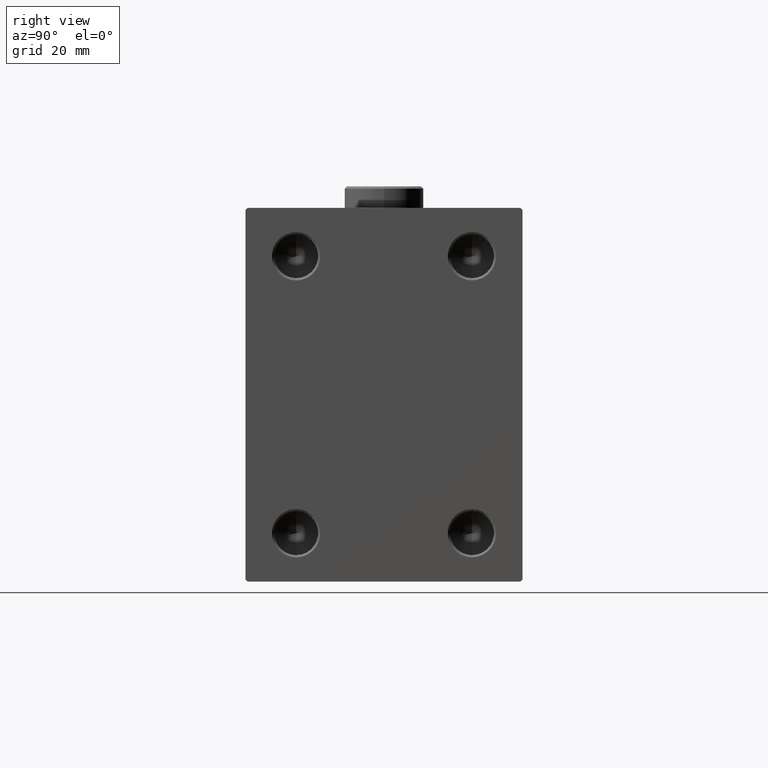
[diagram: clean part render]
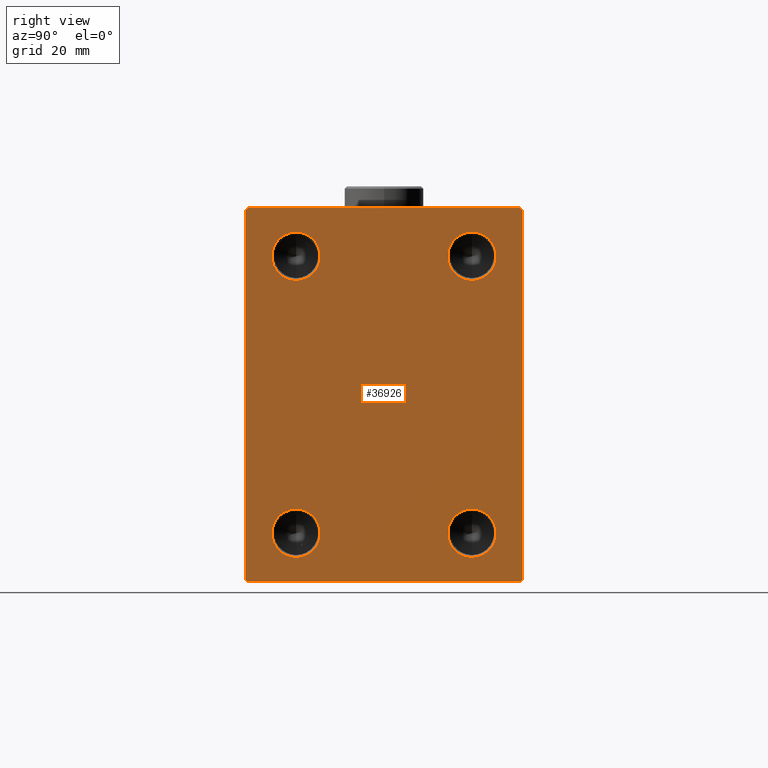
[diagram: same view with one face highlighted and labeled with its STEP entity id]
A machine part, right view. The second image highlights one B-rep face of the part: STEP entity #36926.
In plain terms, the highlighted planar face has unit normal (1, 0, 0).
Its self-contained STEP definition (entity closure, byte-faithful):
#78 = VERTEX_POINT ( 'NONE', #22331 ) ;
#230 = DIRECTION ( 'NONE',  ( 0.000000000000000000, -0.7071067811865474617, -0.7071067811865474617 ) ) ;
#1031 = VERTEX_POINT ( 'NONE', #31180 ) ;
#1392 = CARTESIAN_POINT ( 'NONE',  ( 113.0000000000000000, -31.50000000000000000, 42.00000000000001421 ) ) ;
#1752 = LINE ( 'NONE', #11216, #4966 ) ;
#1959 = AXIS2_PLACEMENT_3D ( 'NONE', #3819, #36097, #11414 ) ;
#2239 = EDGE_CURVE ( 'NONE', #16648, #42021, #31319, .T. ) ;
#2272 = EDGE_CURVE ( 'NONE', #38893, #29873, #42996, .T. ) ;
#2332 = CARTESIAN_POINT ( 'NONE',  ( 113.0000000000000000, 19.99999999999999645, -31.50000000000000000 ) ) ;
#2755 = EDGE_CURVE ( 'NONE', #42021, #16648, #37141, .T. ) ;
#2882 = DIRECTION ( 'NONE',  ( -0.000000000000000000, -0.7071067811865474617, 0.7071067811865474617 ) ) ;
#3180 = VERTEX_POINT ( 'NONE', #15703 ) ;
#3267 = VECTOR ( 'NONE', #38382, 1000.000000000000000 ) ;
#3485 = EDGE_CURVE ( 'NONE', #4454, #3760, #22516, .T. ) ;
#3490 = EDGE_CURVE ( 'NONE', #3760, #9118, #23429, .T. ) ;
#3702 = CARTESIAN_POINT ( 'NONE',  ( 113.0000000000000000, -31.00000000000002842, 42.49999999999998579 ) ) ;
#3747 = EDGE_CURVE ( 'NONE', #29873, #38893, #42265, .T. ) ;
#3760 = VERTEX_POINT ( 'NONE', #23141 ) ;
#3819 = CARTESIAN_POINT ( 'NONE',  ( 113.0000000000000000, -20.00000000000000355, -31.50000000000000000 ) ) ;
#3899 = FACE_OUTER_BOUND ( 'NONE', #28301, .T. ) ;
#4015 = CARTESIAN_POINT ( 'NONE',  ( 113.0000000000000000, 19.99999999999999645, 36.99999999999996447 ) ) ;
#4153 = CIRCLE ( 'NONE', #1959, 5.499999999999963585 ) ;
#4266 = EDGE_CURVE ( 'NONE', #78, #11572, #27611, .T. ) ;
#4454 = VERTEX_POINT ( 'NONE', #37540 ) ;
#4575 = DIRECTION ( 'NONE',  ( 0.000000000000000000, -1.632680918566406547E-16, 1.000000000000000000 ) ) ;
#4676 = CARTESIAN_POINT ( 'NONE',  ( 113.0000000000000000, -20.00000000000000355, 36.99999999999996447 ) ) ;
#4966 = VECTOR ( 'NONE', #18816, 1000.000000000000000 ) ;
#6533 = AXIS2_PLACEMENT_3D ( 'NONE', #17899, #11428, #31970 ) ;
#7498 = LINE ( 'NONE', #21586, #34976 ) ;
#7747 = EDGE_LOOP ( 'NONE', ( #39293, #30837 ) ) ;
#7803 = FACE_BOUND ( 'NONE', #7747, .T. ) ;
#7815 = CARTESIAN_POINT ( 'NONE',  ( 113.0000000000000000, 19.99999999999999645, 31.50000000000000000 ) ) ;
#8395 = ORIENTED_EDGE ( 'NONE', *, *, #3485, .T. ) ;
#9118 = VERTEX_POINT ( 'NONE', #3702 ) ;
#9477 = EDGE_LOOP ( 'NONE', ( #10353, #21608 ) ) ;
#9857 = EDGE_CURVE ( 'NONE', #3180, #1031, #4153, .T. ) ;
#10185 = CARTESIAN_POINT ( 'NONE',  ( 113.0000000000000000, -31.50000000000000000, 42.49999999999998579 ) ) ;
#10353 = ORIENTED_EDGE ( 'NONE', *, *, #2239, .F. ) ;
#10817 = PLANE ( 'NONE',  #32302 ) ;
#10827 = CARTESIAN_POINT ( 'NONE',  ( 113.0000000000000000, -36.75000000000001421, 36.75000000000001421 ) ) ;
#11216 = CARTESIAN_POINT ( 'NONE',  ( 113.0000000000000000, -36.75000000000023448, -36.74999999999972999 ) ) ;
#11414 = DIRECTION ( 'NONE',  ( 0.000000000000000000, 0.000000000000000000, -1.000000000000000000 ) ) ;
#11428 = DIRECTION ( 'NONE',  ( 1.000000000000000000, -0.000000000000000000, -0.000000000000000000 ) ) ;
#11572 = VERTEX_POINT ( 'NONE', #20018 ) ;
#12105 = ORIENTED_EDGE ( 'NONE', *, *, #38509, .F. ) ;
#12185 = CARTESIAN_POINT ( 'NONE',  ( 113.0000000000000000, -31.00000000000002842, -42.50000000000000711 ) ) ;
#12191 = CARTESIAN_POINT ( 'NONE',  ( 113.0000000000000000, 31.50000000000001421, -42.50000000000000711 ) ) ;
#12598 = ORIENTED_EDGE ( 'NONE', *, *, #33543, .T. ) ;
#13722 = EDGE_LOOP ( 'NONE', ( #12105, #33416 ) ) ;
#13788 = DIRECTION ( 'NONE',  ( 0.000000000000000000, 0.000000000000000000, -1.000000000000000000 ) ) ;
#14418 = DIRECTION ( 'NONE',  ( 0.000000000000000000, 0.000000000000000000, -1.000000000000000000 ) ) ;
#14870 = CARTESIAN_POINT ( 'NONE',  ( 113.0000000000000000, -20.00000000000000355, 31.50000000000000000 ) ) ;
#15495 = DIRECTION ( 'NONE',  ( 1.000000000000000000, -0.000000000000000000, -0.000000000000000000 ) ) ;
#15591 = FACE_BOUND ( 'NONE', #15900, .T. ) ;
#15703 = CARTESIAN_POINT ( 'NONE',  ( 113.0000000000000000, -20.00000000000000355, -36.99999999999996447 ) ) ;
#15900 = EDGE_LOOP ( 'NONE', ( #38522, #17687 ) ) ;
#16520 = LINE ( 'NONE', #26926, #24573 ) ;
#16526 = CIRCLE ( 'NONE', #43775, 5.499999999999963585 ) ;
#16554 = DIRECTION ( 'NONE',  ( 0.000000000000000000, 0.000000000000000000, -1.000000000000000000 ) ) ;
#16648 = VERTEX_POINT ( 'NONE', #4015 ) ;
#17687 = ORIENTED_EDGE ( 'NONE', *, *, #4266, .F. ) ;
#17760 = DIRECTION ( 'NONE',  ( 0.000000000000000000, 0.000000000000000000, -1.000000000000000000 ) ) ;
#17899 = CARTESIAN_POINT ( 'NONE',  ( 113.0000000000000000, -20.00000000000000355, -31.50000000000000000 ) ) ;
#18816 = DIRECTION ( 'NONE',  ( -0.000000000000000000, 0.7071067811865426878, -0.7071067811865524577 ) ) ;
#19113 = CARTESIAN_POINT ( 'NONE',  ( 113.0000000000000000, 19.99999999999999645, -31.50000000000000000 ) ) ;
#19751 = ORIENTED_EDGE ( 'NONE', *, *, #23790, .T. ) ;
#20018 = CARTESIAN_POINT ( 'NONE',  ( 113.0000000000000000, 19.99999999999999645, -26.00000000000003197 ) ) ;
#20334 = EDGE_CURVE ( 'NONE', #30797, #41108, #16520, .T. ) ;
#20475 = CARTESIAN_POINT ( 'NONE',  ( 113.0000000000000000, 19.99999999999999645, 31.50000000000000000 ) ) ;
#21337 = DIRECTION ( 'NONE',  ( 1.000000000000000000, -0.000000000000000000, -0.000000000000000000 ) ) ;
#21343 = VECTOR ( 'NONE', #4575, 1000.000000000000000 ) ;
#21586 = CARTESIAN_POINT ( 'NONE',  ( 113.0000000000000000, -31.50000000000000000, -42.50000000000000711 ) ) ;
#21608 = ORIENTED_EDGE ( 'NONE', *, *, #2755, .F. ) ;
#21895 = CARTESIAN_POINT ( 'NONE',  ( 113.0000000000000000, 0.000000000000000000, 0.000000000000000000 ) ) ;
#22229 = EDGE_CURVE ( 'NONE', #11572, #78, #16526, .T. ) ;
#22331 = CARTESIAN_POINT ( 'NONE',  ( 113.0000000000000000, 19.99999999999999645, -36.99999999999996447 ) ) ;
#22397 = AXIS2_PLACEMENT_3D ( 'NONE', #14870, #21337, #14418 ) ;
#22516 = LINE ( 'NONE', #44387, #43025 ) ;
#23121 = ORIENTED_EDGE ( 'NONE', *, *, #37805, .T. ) ;
#23141 = CARTESIAN_POINT ( 'NONE',  ( 113.0000000000000000, 31.00000000000002842, 42.49999999999999289 ) ) ;
#23429 = LINE ( 'NONE', #27129, #3267 ) ;
#23790 = EDGE_CURVE ( 'NONE', #27372, #30797, #7498, .T. ) ;
#23791 = CARTESIAN_POINT ( 'NONE',  ( 113.0000000000000000, 31.00000000000004263, -42.50000000000000711 ) ) ;
#24573 = VECTOR ( 'NONE', #40964, 1000.000000000000114 ) ;
#25333 = AXIS2_PLACEMENT_3D ( 'NONE', #20475, #26731, #16554 ) ;
#25346 = FACE_BOUND ( 'NONE', #13722, .T. ) ;
#25718 = VECTOR ( 'NONE', #230, 1000.000000000000114 ) ;
#26455 = CIRCLE ( 'NONE', #6533, 5.499999999999963585 ) ;
#26731 = DIRECTION ( 'NONE',  ( 1.000000000000000000, -0.000000000000000000, -0.000000000000000000 ) ) ;
#26926 = CARTESIAN_POINT ( 'NONE',  ( 113.0000000000000000, 36.75000000000002842, -36.75000000000002842 ) ) ;
#27129 = CARTESIAN_POINT ( 'NONE',  ( 113.0000000000000000, 31.50000000000000000, 42.49999999999999289 ) ) ;
#27372 = VERTEX_POINT ( 'NONE', #12185 ) ;
#27539 = AXIS2_PLACEMENT_3D ( 'NONE', #35006, #42357, #13788 ) ;
#27611 = CIRCLE ( 'NONE', #40847, 5.499999999999963585 ) ;
#28136 = DIRECTION ( 'NONE',  ( 1.000000000000000000, 0.000000000000000000, 0.000000000000000000 ) ) ;
#28301 = EDGE_LOOP ( 'NONE', ( #36198, #23121, #12598, #35502, #19751, #36878, #42889, #8395 ) ) ;
#28307 = CARTESIAN_POINT ( 'NONE',  ( 113.0000000000000000, -31.50000000000000000, -42.00000000000002842 ) ) ;
#28837 = DIRECTION ( 'NONE',  ( 1.000000000000000000, -0.000000000000000000, -0.000000000000000000 ) ) ;
#29729 = DIRECTION ( 'NONE',  ( 0.000000000000000000, 0.000000000000000000, -1.000000000000000000 ) ) ;
#29873 = VERTEX_POINT ( 'NONE', #30477 ) ;
#30477 = CARTESIAN_POINT ( 'NONE',  ( 113.0000000000000000, -20.00000000000000355, 26.00000000000003197 ) ) ;
#30797 = VERTEX_POINT ( 'NONE', #23791 ) ;
#30837 = ORIENTED_EDGE ( 'NONE', *, *, #3747, .F. ) ;
#31180 = CARTESIAN_POINT ( 'NONE',  ( 113.0000000000000000, -20.00000000000000355, -26.00000000000003197 ) ) ;
#31319 = CIRCLE ( 'NONE', #25333, 5.499999999999963585 ) ;
#31604 = DIRECTION ( 'NONE',  ( 1.000000000000000000, -0.000000000000000000, -0.000000000000000000 ) ) ;
#31970 = DIRECTION ( 'NONE',  ( 0.000000000000000000, 0.000000000000000000, -1.000000000000000000 ) ) ;
#32039 = FACE_BOUND ( 'NONE', #9477, .T. ) ;
#32302 = AXIS2_PLACEMENT_3D ( 'NONE', #21895, #28136, #35962 ) ;
#32944 = LINE ( 'NONE', #12191, #21343 ) ;
#32972 = VERTEX_POINT ( 'NONE', #1392 ) ;
#33416 = ORIENTED_EDGE ( 'NONE', *, *, #9857, .F. ) ;
#33474 = DIRECTION ( 'NONE',  ( 0.000000000000000000, 0.000000000000000000, -1.000000000000000000 ) ) ;
#33543 = EDGE_CURVE ( 'NONE', #32972, #43006, #44773, .T. ) ;
#34302 = EDGE_CURVE ( 'NONE', #43006, #27372, #1752, .T. ) ;
#34976 = VECTOR ( 'NONE', #42319, 1000.000000000000000 ) ;
#35006 = CARTESIAN_POINT ( 'NONE',  ( 113.0000000000000000, -20.00000000000000355, 31.50000000000000000 ) ) ;
#35031 = CARTESIAN_POINT ( 'NONE',  ( 113.0000000000000000, 19.99999999999999645, 26.00000000000003197 ) ) ;
#35502 = ORIENTED_EDGE ( 'NONE', *, *, #34302, .T. ) ;
#35962 = DIRECTION ( 'NONE',  ( 0.000000000000000000, 0.000000000000000000, -1.000000000000000000 ) ) ;
#36097 = DIRECTION ( 'NONE',  ( 1.000000000000000000, -0.000000000000000000, -0.000000000000000000 ) ) ;
#36198 = ORIENTED_EDGE ( 'NONE', *, *, #3490, .T. ) ;
#36878 = ORIENTED_EDGE ( 'NONE', *, *, #20334, .T. ) ;
#36926 = ADVANCED_FACE ( 'NONE', ( #32039, #7803, #25346, #15591, #3899 ), #10817, .T. ) ;
#37141 = CIRCLE ( 'NONE', #44496, 5.499999999999963585 ) ;
#37324 = VECTOR ( 'NONE', #41540, 1000.000000000000000 ) ;
#37540 = CARTESIAN_POINT ( 'NONE',  ( 113.0000000000000000, 31.50000000000000000, 42.00000000000002132 ) ) ;
#37805 = EDGE_CURVE ( 'NONE', #9118, #32972, #39405, .T. ) ;
#38382 = DIRECTION ( 'NONE',  ( 0.000000000000000000, -1.000000000000000000, -1.101411730778925171E-16 ) ) ;
#38509 = EDGE_CURVE ( 'NONE', #1031, #3180, #26455, .T. ) ;
#38522 = ORIENTED_EDGE ( 'NONE', *, *, #22229, .F. ) ;
#38893 = VERTEX_POINT ( 'NONE', #4676 ) ;
#39293 = ORIENTED_EDGE ( 'NONE', *, *, #2272, .F. ) ;
#39405 = LINE ( 'NONE', #10827, #25718 ) ;
#40552 = EDGE_CURVE ( 'NONE', #41108, #4454, #32944, .T. ) ;
#40821 = CARTESIAN_POINT ( 'NONE',  ( 113.0000000000000000, 31.50000000000001421, -42.00000000000003553 ) ) ;
#40847 = AXIS2_PLACEMENT_3D ( 'NONE', #19113, #28837, #29729 ) ;
#40964 = DIRECTION ( 'NONE',  ( -0.000000000000000000, 0.7071067811865474617, 0.7071067811865474617 ) ) ;
#41108 = VERTEX_POINT ( 'NONE', #40821 ) ;
#41540 = DIRECTION ( 'NONE',  ( 0.000000000000000000, 0.000000000000000000, -1.000000000000000000 ) ) ;
#42021 = VERTEX_POINT ( 'NONE', #35031 ) ;
#42265 = CIRCLE ( 'NONE', #22397, 5.499999999999963585 ) ;
#42319 = DIRECTION ( 'NONE',  ( 0.000000000000000000, 1.000000000000000000, 0.000000000000000000 ) ) ;
#42357 = DIRECTION ( 'NONE',  ( 1.000000000000000000, -0.000000000000000000, -0.000000000000000000 ) ) ;
#42889 = ORIENTED_EDGE ( 'NONE', *, *, #40552, .T. ) ;
#42996 = CIRCLE ( 'NONE', #27539, 5.499999999999963585 ) ;
#43006 = VERTEX_POINT ( 'NONE', #28307 ) ;
#43025 = VECTOR ( 'NONE', #2882, 1000.000000000000114 ) ;
#43775 = AXIS2_PLACEMENT_3D ( 'NONE', #2332, #15495, #33474 ) ;
#44387 = CARTESIAN_POINT ( 'NONE',  ( 113.0000000000000000, 36.75000000000001421, 36.75000000000001421 ) ) ;
#44496 = AXIS2_PLACEMENT_3D ( 'NONE', #7815, #31604, #17760 ) ;
#44773 = LINE ( 'NONE', #10185, #37324 ) ;